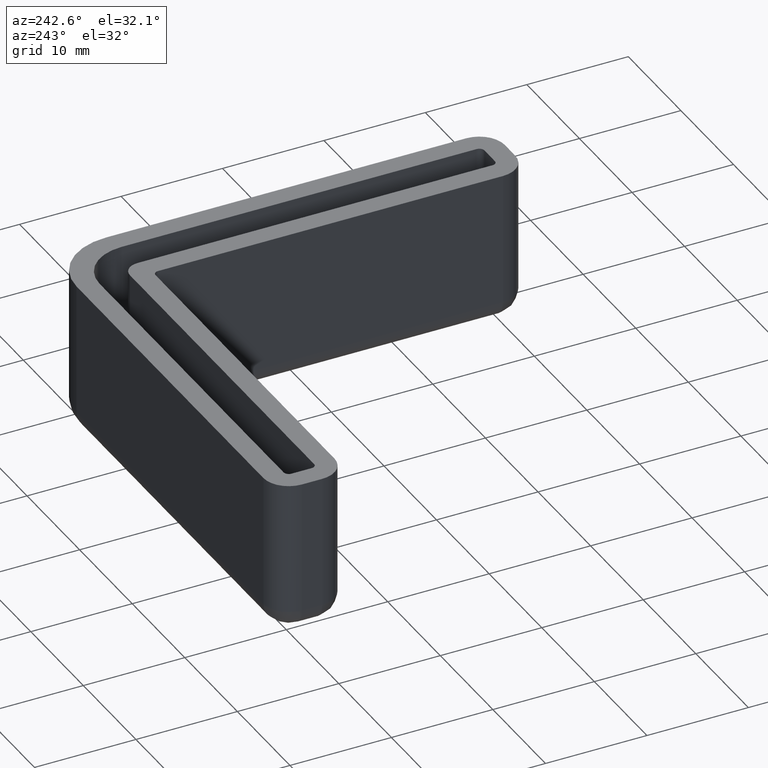
[diagram: clean part render]
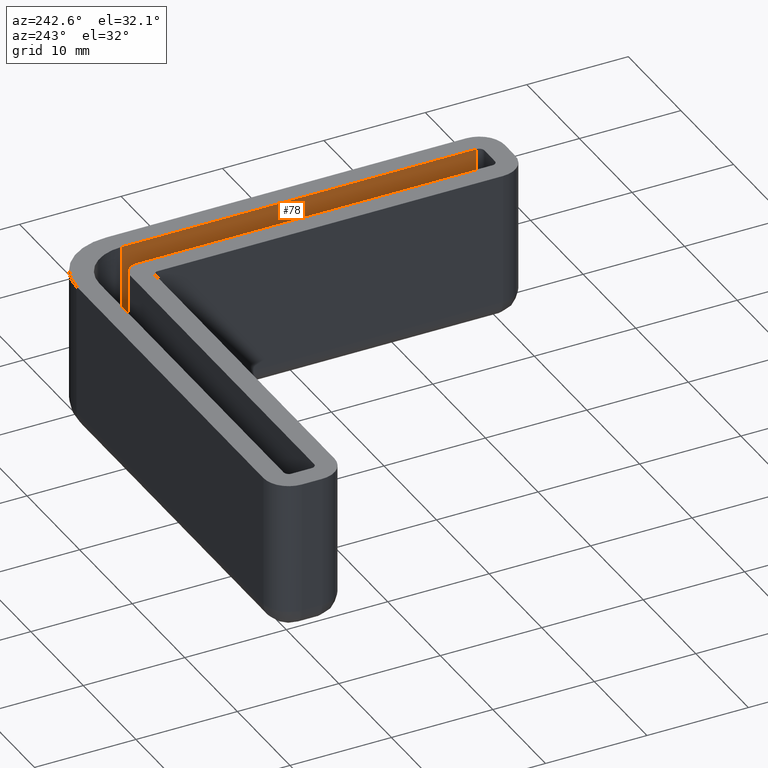
[diagram: same view with one face highlighted and labeled with its STEP entity id]
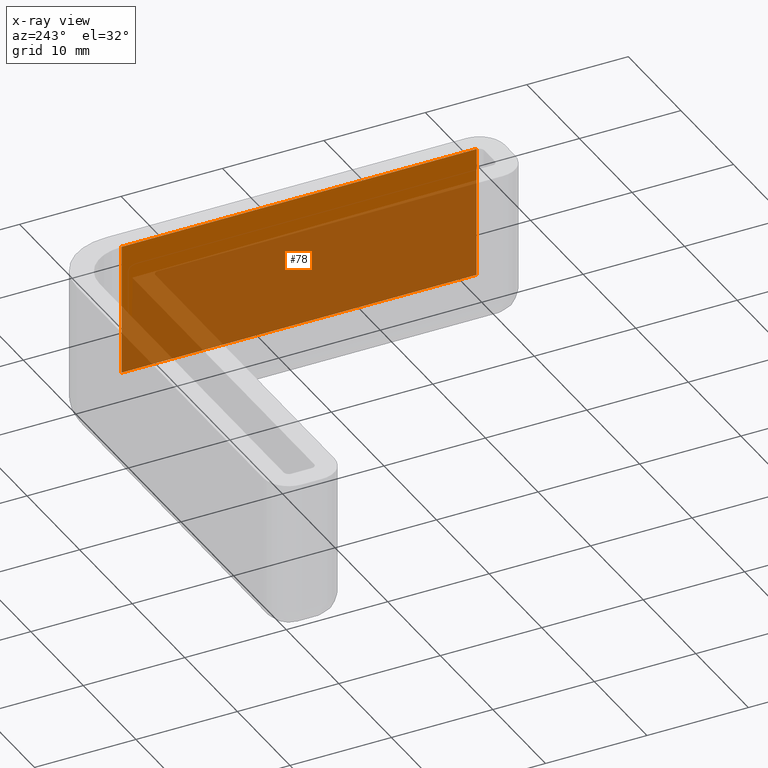
[diagram: x-ray of the same camera — body ghosted, the highlighted face saturated]
A machine part, auxiliary view. The second image highlights one B-rep face of the part: STEP entity #78.
The next image is the same camera in x-ray: the body ghosted, the highlighted face saturated — about 73% of this face is hidden behind the body in this view.
In plain terms, the highlighted planar face has unit normal (-1, 0, 0).
Its self-contained STEP definition (entity closure, byte-faithful):
#78 = ADVANCED_FACE( '', ( #122 ), #123, .T. );
#122 = FACE_OUTER_BOUND( '', #201, .T. );
#123 = PLANE( '', #202 );
#201 = EDGE_LOOP( '', ( #402, #403, #404, #405 ) );
#202 = AXIS2_PLACEMENT_3D( '', #406, #407, #408 );
#402 = ORIENTED_EDGE( '', *, *, #688, .T. );
#403 = ORIENTED_EDGE( '', *, *, #689, .F. );
#404 = ORIENTED_EDGE( '', *, *, #685, .F. );
#405 = ORIENTED_EDGE( '', *, *, #670, .F. );
#406 = CARTESIAN_POINT( '', ( -7.25579264639759E-015, -39.5000000000000, 30.0000000000000 ) );
#407 = DIRECTION( '', ( -1.00000000000000, 1.83690953073357E-016, 0.000000000000000 ) );
#408 = DIRECTION( '', ( -1.83690953073357E-016, -1.00000000000000, 0.000000000000000 ) );
#670 = EDGE_CURVE( '', #778, #779, #780, .T. );
#685 = EDGE_CURVE( '', #779, #807, #808, .T. );
#688 = EDGE_CURVE( '', #778, #812, #813, .T. );
#689 = EDGE_CURVE( '', #807, #812, #814, .T. );
#778 = VERTEX_POINT( '', #940 );
#779 = VERTEX_POINT( '', #941 );
#780 = LINE( '', #942, #943 );
#807 = VERTEX_POINT( '', #977 );
#808 = LINE( '', #978, #979 );
#812 = VERTEX_POINT( '', #984 );
#813 = LINE( '', #985, #986 );
#814 = LINE( '', #987, #988 );
#940 = CARTESIAN_POINT( '', ( -8.26609288830104E-016, -4.50000000000000, 0.000000000000000 ) );
#941 = CARTESIAN_POINT( '', ( -7.25579264639759E-015, -39.5000000000000, 0.000000000000000 ) );
#942 = CARTESIAN_POINT( '', ( -7.22243987706650E-015, -39.5000000000000, 0.000000000000000 ) );
#943 = VECTOR( '', #1144, 1000.00000000000 );
#977 = CARTESIAN_POINT( '', ( -7.25579264639759E-015, -39.5000000000000, -13.0000000000000 ) );
#978 = CARTESIAN_POINT( '', ( -7.25579264639759E-015, -39.5000000000000, 30.0000000000000 ) );
#979 = VECTOR( '', #1173, 1000.00000000000 );
#984 = CARTESIAN_POINT( '', ( -8.26609288830104E-016, -4.50000000000000, -13.0000000000000 ) );
#985 = CARTESIAN_POINT( '', ( -8.26609288830104E-016, -4.50000000000000, 30.0000000000000 ) );
#986 = VECTOR( '', #1178, 1000.00000000000 );
#987 = CARTESIAN_POINT( '', ( -7.25579264639759E-015, -39.5000000000000, -13.0000000000000 ) );
#988 = VECTOR( '', #1179, 1000.00000000000 );
#1144 = DIRECTION( '', ( -1.83690953073357E-016, -1.00000000000000, 0.000000000000000 ) );
#1173 = DIRECTION( '', ( 0.000000000000000, 0.000000000000000, -1.00000000000000 ) );
#1178 = DIRECTION( '', ( 0.000000000000000, 0.000000000000000, -1.00000000000000 ) );
#1179 = DIRECTION( '', ( 1.83690953073357E-016, 1.00000000000000, 0.000000000000000 ) );